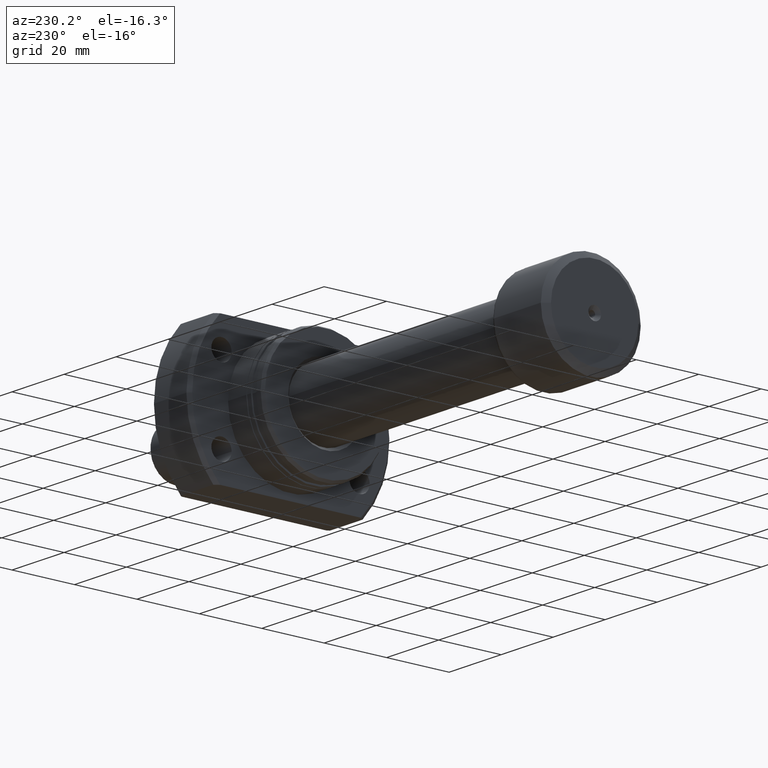
[diagram: clean part render]
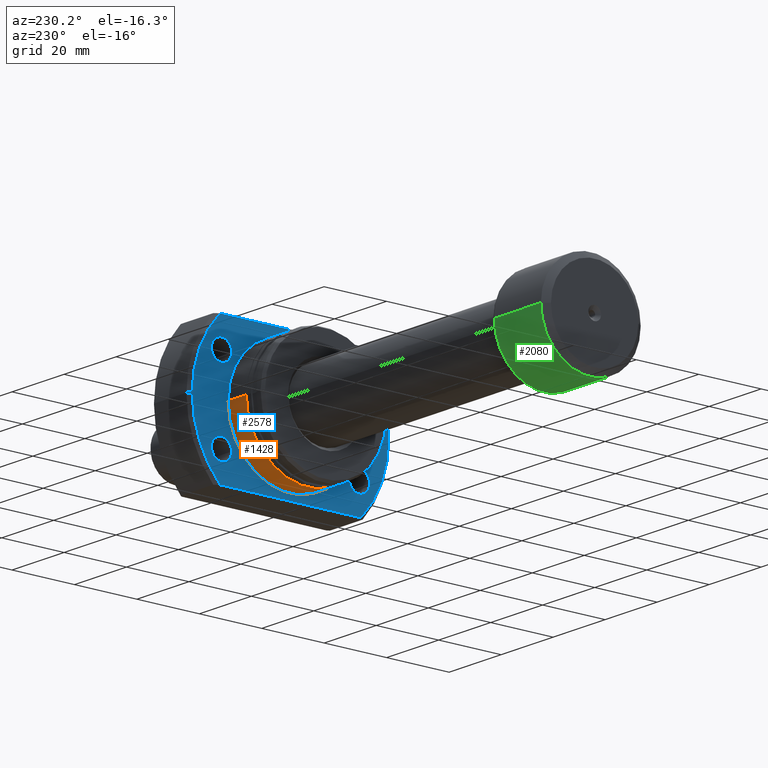
[diagram: same view with three faces highlighted in distinct colors, each labeled with its STEP entity id]
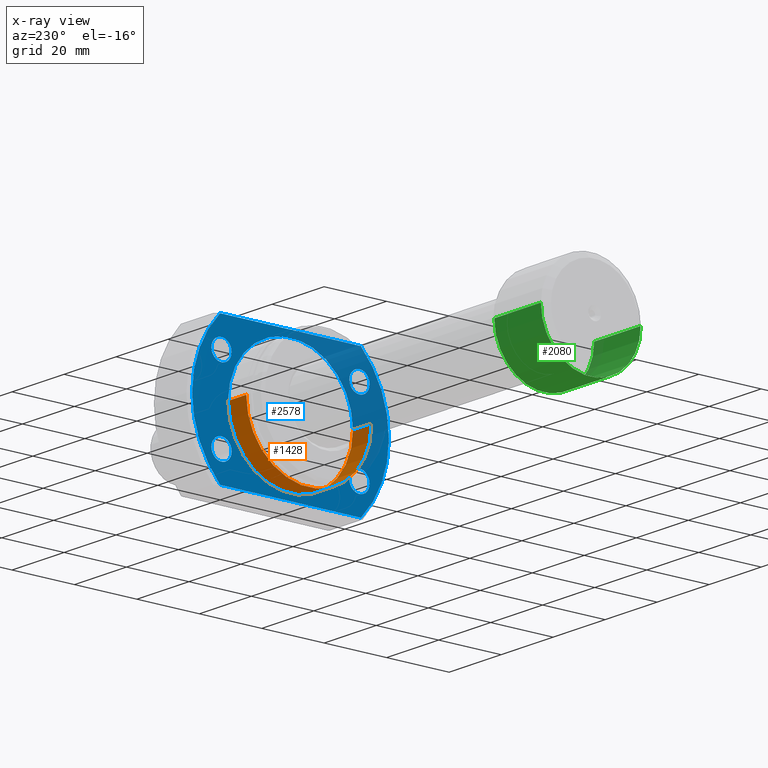
[diagram: x-ray of the same camera — body ghosted, the three highlighted faces saturated]
A machine part, auxiliary view with three faces highlighted in distinct colors.
The next image is the same camera in x-ray (body ghosted, the three faces saturated) — at least one of them is partly hidden behind the body in this view.
Their STEP definitions:

[orange] entity #1428 — the highlighted cylindrical surface (partial cylindrical patch) has radius 20 mm, axis along (1, 0, 0).
#198 = ORIENTED_EDGE ( 'NONE', *, *, #2036, .F. ) ;
#228 = ORIENTED_EDGE ( 'NONE', *, *, #2016, .F. ) ;
#271 = DIRECTION ( 'NONE',  ( 0.000000000000000000, 1.000000000000000000, 0.000000000000000000 ) ) ;
#300 = CARTESIAN_POINT ( 'NONE',  ( 6.499999999999783284, 8.683859121226395531E-17, 0.000000000000000000 ) ) ;
#322 = DIRECTION ( 'NONE',  ( 0.000000000000000000, 1.000000000000000000, 0.000000000000000000 ) ) ;
#397 = VERTEX_POINT ( 'NONE', #1728 ) ;
#549 = EDGE_CURVE ( 'NONE', #1107, #1860, #3311, .T. ) ;
#571 = AXIS2_PLACEMENT_3D ( 'NONE', #2823, #3403, #322 ) ;
#634 = AXIS2_PLACEMENT_3D ( 'NONE', #854, #1681, #271 ) ;
#696 = VECTOR ( 'NONE', #1436, 1000.000000000000000 ) ;
#780 = ORIENTED_EDGE ( 'NONE', *, *, #549, .T. ) ;
#828 = CARTESIAN_POINT ( 'NONE',  ( 13.50000000000000355, 19.99999999999999645, 0.000000000000000000 ) ) ;
#844 = DIRECTION ( 'NONE',  ( 0.000000000000000000, 1.000000000000000000, 0.000000000000000000 ) ) ;
#854 = CARTESIAN_POINT ( 'NONE',  ( 13.50000000000000355, 1.803570740562465471E-16, 0.000000000000000000 ) ) ;
#997 = CARTESIAN_POINT ( 'NONE',  ( 6.499999999999783284, 19.99999999999999645, 0.000000000000000000 ) ) ;
#1107 = VERTEX_POINT ( 'NONE', #2879 ) ;
#1428 = ADVANCED_FACE ( 'NONE', ( #1737 ), #2875, .T. ) ;
#1436 = DIRECTION ( 'NONE',  ( 1.000000000000000000, 1.335978326342566810E-17, -0.000000000000000000 ) ) ;
#1681 = DIRECTION ( 'NONE',  ( 1.000000000000000000, 1.335978326342566810E-17, -0.000000000000000000 ) ) ;
#1688 = DIRECTION ( 'NONE',  ( 1.000000000000000000, 1.335978326342566810E-17, -0.000000000000000000 ) ) ;
#1693 = CARTESIAN_POINT ( 'NONE',  ( 27.50000000000000355, -19.99999999999999645, 2.449293598294706119E-15 ) ) ;
#1728 = CARTESIAN_POINT ( 'NONE',  ( 13.50000000000000355, -19.99999999999999645, 2.449293598294706119E-15 ) ) ;
#1737 = FACE_OUTER_BOUND ( 'NONE', #2242, .T. ) ;
#1860 = VERTEX_POINT ( 'NONE', #997 ) ;
#1988 = CARTESIAN_POINT ( 'NONE',  ( 27.50000000000000355, 19.99999999999999645, 0.000000000000000000 ) ) ;
#2016 = EDGE_CURVE ( 'NONE', #397, #2565, #2653, .T. ) ;
#2036 = EDGE_CURVE ( 'NONE', #1107, #397, #2243, .T. ) ;
#2087 = EDGE_CURVE ( 'NONE', #1860, #2565, #2822, .T. ) ;
#2127 = AXIS2_PLACEMENT_3D ( 'NONE', #300, #1688, #844 ) ;
#2242 = EDGE_LOOP ( 'NONE', ( #198, #780, #2966, #228 ) ) ;
#2243 = LINE ( 'NONE', #1693, #2482 ) ;
#2482 = VECTOR ( 'NONE', #3666, 1000.000000000000000 ) ;
#2565 = VERTEX_POINT ( 'NONE', #828 ) ;
#2653 = CIRCLE ( 'NONE', #634, 19.99999999999999645 ) ;
#2822 = LINE ( 'NONE', #1988, #696 ) ;
#2823 = CARTESIAN_POINT ( 'NONE',  ( 27.50000000000000355, 3.673940397442059375E-16, 0.000000000000000000 ) ) ;
#2875 = CYLINDRICAL_SURFACE ( 'NONE', #571, 19.99999999999999645 ) ;
#2879 = CARTESIAN_POINT ( 'NONE',  ( 6.499999999999783284, -19.99999999999999645, 2.449293598294706119E-15 ) ) ;
#2966 = ORIENTED_EDGE ( 'NONE', *, *, #2087, .T. ) ;
#3311 = CIRCLE ( 'NONE', #2127, 19.99999999999999645 ) ;
#3403 = DIRECTION ( 'NONE',  ( 1.000000000000000000, 1.335978326342566810E-17, -0.000000000000000000 ) ) ;
#3666 = DIRECTION ( 'NONE',  ( 1.000000000000000000, 1.335978326342566810E-17, -0.000000000000000000 ) ) ;

[blue] entity #2578 — the highlighted planar face has unit normal (1, 0, 0).
#1 = DIRECTION ( 'NONE',  ( 1.000000000000000000, 1.335978326342566810E-17, -0.000000000000000000 ) ) ;
#35 = EDGE_LOOP ( 'NONE', ( #880, #1268 ) ) ;
#38 = DIRECTION ( 'NONE',  ( 1.000000000000000000, 1.335978326342566810E-17, -0.000000000000000000 ) ) ;
#55 = CARTESIAN_POINT ( 'NONE',  ( 13.50000000000000178, 22.54440063519089676, 22.00000000000000355 ) ) ;
#60 = DIRECTION ( 'NONE',  ( 1.000000000000000000, 1.335978326342566810E-17, -0.000000000000000000 ) ) ;
#78 = ORIENTED_EDGE ( 'NONE', *, *, #1353, .F. ) ;
#96 = EDGE_LOOP ( 'NONE', ( #2579, #3077 ) ) ;
#113 = VERTEX_POINT ( 'NONE', #1857 ) ;
#187 = ORIENTED_EDGE ( 'NONE', *, *, #2217, .T. ) ;
#195 = VERTEX_POINT ( 'NONE', #3349 ) ;
#201 = ORIENTED_EDGE ( 'NONE', *, *, #712, .T. ) ;
#217 = DIRECTION ( 'NONE',  ( 1.000000000000000000, 1.335978326342566810E-17, -0.000000000000000000 ) ) ;
#271 = DIRECTION ( 'NONE',  ( 0.000000000000000000, 1.000000000000000000, 0.000000000000000000 ) ) ;
#273 = CARTESIAN_POINT ( 'NONE',  ( 13.50000000000000178, -22.10000000000038511, -12.75000000000000178 ) ) ;
#316 = FACE_BOUND ( 'NONE', #3572, .T. ) ;
#319 = EDGE_CURVE ( 'NONE', #2730, #3399, #2531, .T. ) ;
#334 = DIRECTION ( 'NONE',  ( 1.000000000000000000, 1.335978326342566810E-17, -0.000000000000000000 ) ) ;
#346 = CIRCLE ( 'NONE', #1077, 3.249999999999999556 ) ;
#397 = VERTEX_POINT ( 'NONE', #1728 ) ;
#411 = CARTESIAN_POINT ( 'NONE',  ( 13.50000000000000178, 1.803570740562465225E-16, 0.000000000000000000 ) ) ;
#426 = VERTEX_POINT ( 'NONE', #55 ) ;
#450 = CARTESIAN_POINT ( 'NONE',  ( 13.50000000000000178, -22.10000000000038511, 12.74999999999999822 ) ) ;
#456 = CIRCLE ( 'NONE', #621, 19.99999999999999645 ) ;
#535 = CIRCLE ( 'NONE', #2022, 3.249999999999999556 ) ;
#551 = CARTESIAN_POINT ( 'NONE',  ( 13.50000000000000178, 22.09999999999961773, 12.74999999999999822 ) ) ;
#592 = VERTEX_POINT ( 'NONE', #2798 ) ;
#601 = DIRECTION ( 'NONE',  ( 1.335978326342566810E-17, -1.000000000000000000, 0.000000000000000000 ) ) ;
#618 = CARTESIAN_POINT ( 'NONE',  ( 13.50000000000000178, 1.803570740562465225E-16, 0.000000000000000000 ) ) ;
#621 = AXIS2_PLACEMENT_3D ( 'NONE', #818, #217, #2248 ) ;
#624 = CIRCLE ( 'NONE', #2011, 31.49999999999993250 ) ;
#634 = AXIS2_PLACEMENT_3D ( 'NONE', #854, #1681, #271 ) ;
#659 = VERTEX_POINT ( 'NONE', #1508 ) ;
#679 = DIRECTION ( 'NONE',  ( 0.000000000000000000, 1.000000000000000000, 0.000000000000000000 ) ) ;
#682 = AXIS2_PLACEMENT_3D ( 'NONE', #273, #38, #3404 ) ;
#701 = AXIS2_PLACEMENT_3D ( 'NONE', #2083, #1515, #1462 ) ;
#712 = EDGE_CURVE ( 'NONE', #2565, #397, #456, .T. ) ;
#733 = ORIENTED_EDGE ( 'NONE', *, *, #1291, .F. ) ;
#770 = CARTESIAN_POINT ( 'NONE',  ( 13.50000000000000178, -19.99999999999999645, 22.00000000000000355 ) ) ;
#786 = LINE ( 'NONE', #2947, #1890 ) ;
#818 = CARTESIAN_POINT ( 'NONE',  ( 13.50000000000000355, 1.803570740562465471E-16, 0.000000000000000000 ) ) ;
#828 = CARTESIAN_POINT ( 'NONE',  ( 13.50000000000000355, 19.99999999999999645, 0.000000000000000000 ) ) ;
#833 = ORIENTED_EDGE ( 'NONE', *, *, #2807, .F. ) ;
#854 = CARTESIAN_POINT ( 'NONE',  ( 13.50000000000000355, 1.803570740562465471E-16, 0.000000000000000000 ) ) ;
#872 = DIRECTION ( 'NONE',  ( 0.000000000000000000, 1.000000000000000000, 0.000000000000000000 ) ) ;
#880 = ORIENTED_EDGE ( 'NONE', *, *, #1557, .T. ) ;
#881 = FACE_OUTER_BOUND ( 'NONE', #3254, .T. ) ;
#955 = FACE_BOUND ( 'NONE', #96, .T. ) ;
#973 = DIRECTION ( 'NONE',  ( 1.000000000000000000, 1.335978326342566810E-17, -0.000000000000000000 ) ) ;
#985 = DIRECTION ( 'NONE',  ( 1.000000000000000000, 1.335978326342566810E-17, -0.000000000000000000 ) ) ;
#1005 = VERTEX_POINT ( 'NONE', #2765 ) ;
#1077 = AXIS2_PLACEMENT_3D ( 'NONE', #3523, #973, #2471 ) ;
#1132 = CIRCLE ( 'NONE', #1596, 31.49999999999993250 ) ;
#1219 = FACE_BOUND ( 'NONE', #1813, .T. ) ;
#1268 = ORIENTED_EDGE ( 'NONE', *, *, #3670, .T. ) ;
#1283 = CARTESIAN_POINT ( 'NONE',  ( 13.50000000000000178, 31.49999999999993250, 0.000000000000000000 ) ) ;
#1291 = EDGE_CURVE ( 'NONE', #592, #1391, #624, .T. ) ;
#1313 = CARTESIAN_POINT ( 'NONE',  ( 13.50000000000000178, -22.10000000000038511, -12.75000000000000178 ) ) ;
#1353 = EDGE_CURVE ( 'NONE', #426, #1834, #2188, .T. ) ;
#1368 = DIRECTION ( 'NONE',  ( 1.000000000000000000, 1.335978326342566810E-17, -0.000000000000000000 ) ) ;
#1391 = VERTEX_POINT ( 'NONE', #1283 ) ;
#1412 = CARTESIAN_POINT ( 'NONE',  ( 13.50000000000000178, -22.10000000000038511, 12.74999999999999822 ) ) ;
#1442 = ORIENTED_EDGE ( 'NONE', *, *, #2016, .T. ) ;
#1458 = FACE_BOUND ( 'NONE', #1798, .T. ) ;
#1462 = DIRECTION ( 'NONE',  ( 0.000000000000000000, 1.000000000000000000, 0.000000000000000000 ) ) ;
#1472 = AXIS2_PLACEMENT_3D ( 'NONE', #450, #3551, #679 ) ;
#1507 = EDGE_CURVE ( 'NONE', #3094, #2410, #2539, .T. ) ;
#1508 = CARTESIAN_POINT ( 'NONE',  ( 13.50000000000000178, -18.85000000000038867, 12.74999999999999822 ) ) ;
#1515 = DIRECTION ( 'NONE',  ( 1.000000000000000000, 1.335978326342566810E-17, -0.000000000000000000 ) ) ;
#1557 = EDGE_CURVE ( 'NONE', #195, #113, #3491, .T. ) ;
#1593 = VECTOR ( 'NONE', #3651, 1000.000000000000000 ) ;
#1596 = AXIS2_PLACEMENT_3D ( 'NONE', #411, #985, #3520 ) ;
#1600 = CIRCLE ( 'NONE', #3622, 3.249999999999999556 ) ;
#1654 = EDGE_CURVE ( 'NONE', #592, #2742, #786, .T. ) ;
#1681 = DIRECTION ( 'NONE',  ( 1.000000000000000000, 1.335978326342566810E-17, -0.000000000000000000 ) ) ;
#1685 = CARTESIAN_POINT ( 'NONE',  ( 13.50000000000000178, 1.803570740562465225E-16, 0.000000000000000000 ) ) ;
#1713 = EDGE_CURVE ( 'NONE', #1834, #2742, #1963, .T. ) ;
#1728 = CARTESIAN_POINT ( 'NONE',  ( 13.50000000000000355, -19.99999999999999645, 2.449293598294706119E-15 ) ) ;
#1741 = DIRECTION ( 'NONE',  ( 0.000000000000000000, 1.000000000000000000, 0.000000000000000000 ) ) ;
#1783 = ORIENTED_EDGE ( 'NONE', *, *, #1713, .F. ) ;
#1798 = EDGE_LOOP ( 'NONE', ( #2743, #187 ) ) ;
#1813 = EDGE_LOOP ( 'NONE', ( #2232, #2941 ) ) ;
#1829 = AXIS2_PLACEMENT_3D ( 'NONE', #2009, #60, #1741 ) ;
#1834 = VERTEX_POINT ( 'NONE', #2440 ) ;
#1857 = CARTESIAN_POINT ( 'NONE',  ( 13.50000000000000178, 18.84999999999961773, 12.74999999999999822 ) ) ;
#1890 = VECTOR ( 'NONE', #601, 1000.000000000000000 ) ;
#1963 = CIRCLE ( 'NONE', #3096, 31.49999999999993250 ) ;
#2009 = CARTESIAN_POINT ( 'NONE',  ( 13.50000000000000178, 22.09999999999961773, -12.75000000000000178 ) ) ;
#2011 = AXIS2_PLACEMENT_3D ( 'NONE', #1685, #1368, #2489 ) ;
#2016 = EDGE_CURVE ( 'NONE', #397, #2565, #2653, .T. ) ;
#2022 = AXIS2_PLACEMENT_3D ( 'NONE', #1412, #1, #2470 ) ;
#2083 = CARTESIAN_POINT ( 'NONE',  ( 13.50000000000000178, 22.09999999999961773, -12.75000000000000178 ) ) ;
#2188 = LINE ( 'NONE', #770, #1593 ) ;
#2208 = FACE_BOUND ( 'NONE', #35, .T. ) ;
#2217 = EDGE_CURVE ( 'NONE', #2410, #3094, #2547, .T. ) ;
#2232 = ORIENTED_EDGE ( 'NONE', *, *, #3307, .T. ) ;
#2248 = DIRECTION ( 'NONE',  ( 0.000000000000000000, 1.000000000000000000, 0.000000000000000000 ) ) ;
#2270 = DIRECTION ( 'NONE',  ( 1.000000000000000000, 1.335978326342566810E-17, -0.000000000000000000 ) ) ;
#2274 = CARTESIAN_POINT ( 'NONE',  ( 13.50000000000000178, 25.34999999999961418, -12.75000000000000178 ) ) ;
#2337 = CARTESIAN_POINT ( 'NONE',  ( 13.50000000000000178, -19.99999999999999645, 0.000000000000000000 ) ) ;
#2410 = VERTEX_POINT ( 'NONE', #3603 ) ;
#2440 = CARTESIAN_POINT ( 'NONE',  ( 13.50000000000001421, -22.54440063519093940, 22.00000000000000355 ) ) ;
#2455 = EDGE_CURVE ( 'NONE', #659, #1005, #535, .T. ) ;
#2470 = DIRECTION ( 'NONE',  ( 0.000000000000000000, 1.000000000000000000, 0.000000000000000000 ) ) ;
#2471 = DIRECTION ( 'NONE',  ( 0.000000000000000000, 1.000000000000000000, 0.000000000000000000 ) ) ;
#2489 = DIRECTION ( 'NONE',  ( 0.000000000000000000, 1.000000000000000000, 0.000000000000000000 ) ) ;
#2531 = CIRCLE ( 'NONE', #682, 3.249999999999999556 ) ;
#2539 = CIRCLE ( 'NONE', #1829, 3.249999999999999556 ) ;
#2547 = CIRCLE ( 'NONE', #701, 3.249999999999999556 ) ;
#2565 = VERTEX_POINT ( 'NONE', #828 ) ;
#2578 = ADVANCED_FACE ( 'NONE', ( #2208, #955, #1219, #1458, #316, #881 ), #3184, .F. ) ;
#2579 = ORIENTED_EDGE ( 'NONE', *, *, #2455, .T. ) ;
#2653 = CIRCLE ( 'NONE', #634, 19.99999999999999645 ) ;
#2730 = VERTEX_POINT ( 'NONE', #3264 ) ;
#2742 = VERTEX_POINT ( 'NONE', #3298 ) ;
#2743 = ORIENTED_EDGE ( 'NONE', *, *, #1507, .T. ) ;
#2765 = CARTESIAN_POINT ( 'NONE',  ( 13.50000000000000178, -25.35000000000038511, 12.74999999999999822 ) ) ;
#2790 = EDGE_CURVE ( 'NONE', #1005, #659, #3200, .T. ) ;
#2798 = CARTESIAN_POINT ( 'NONE',  ( 13.50000000000000178, 22.54440063519089676, -22.00000000000000355 ) ) ;
#2807 = EDGE_CURVE ( 'NONE', #1391, #426, #1132, .T. ) ;
#2900 = AXIS2_PLACEMENT_3D ( 'NONE', #2337, #334, #3169 ) ;
#2941 = ORIENTED_EDGE ( 'NONE', *, *, #319, .T. ) ;
#2947 = CARTESIAN_POINT ( 'NONE',  ( 13.50000000000000178, -19.99999999999999645, -22.00000000000000355 ) ) ;
#3077 = ORIENTED_EDGE ( 'NONE', *, *, #2790, .T. ) ;
#3094 = VERTEX_POINT ( 'NONE', #2274 ) ;
#3096 = AXIS2_PLACEMENT_3D ( 'NONE', #618, #3454, #3221 ) ;
#3143 = AXIS2_PLACEMENT_3D ( 'NONE', #551, #2270, #872 ) ;
#3169 = DIRECTION ( 'NONE',  ( -1.335978326342566810E-17, 1.000000000000000000, 0.000000000000000000 ) ) ;
#3184 = PLANE ( 'NONE',  #2900 ) ;
#3196 = ORIENTED_EDGE ( 'NONE', *, *, #1654, .T. ) ;
#3200 = CIRCLE ( 'NONE', #1472, 3.249999999999999556 ) ;
#3221 = DIRECTION ( 'NONE',  ( 0.000000000000000000, 1.000000000000000000, 0.000000000000000000 ) ) ;
#3226 = DIRECTION ( 'NONE',  ( 0.000000000000000000, 1.000000000000000000, 0.000000000000000000 ) ) ;
#3254 = EDGE_LOOP ( 'NONE', ( #78, #833, #733, #3196, #1783 ) ) ;
#3264 = CARTESIAN_POINT ( 'NONE',  ( 13.50000000000000178, -25.35000000000038511, -12.75000000000000178 ) ) ;
#3279 = DIRECTION ( 'NONE',  ( 1.000000000000000000, 1.335978326342566810E-17, -0.000000000000000000 ) ) ;
#3298 = CARTESIAN_POINT ( 'NONE',  ( 13.50000000000001421, -22.54440063519093940, -22.00000000000000355 ) ) ;
#3307 = EDGE_CURVE ( 'NONE', #3399, #2730, #1600, .T. ) ;
#3349 = CARTESIAN_POINT ( 'NONE',  ( 13.50000000000000178, 25.34999999999961418, 12.74999999999999822 ) ) ;
#3399 = VERTEX_POINT ( 'NONE', #3595 ) ;
#3404 = DIRECTION ( 'NONE',  ( 0.000000000000000000, 1.000000000000000000, 0.000000000000000000 ) ) ;
#3454 = DIRECTION ( 'NONE',  ( 1.000000000000000000, 1.335978326342566810E-17, -0.000000000000000000 ) ) ;
#3491 = CIRCLE ( 'NONE', #3143, 3.249999999999999556 ) ;
#3520 = DIRECTION ( 'NONE',  ( 0.000000000000000000, 1.000000000000000000, 0.000000000000000000 ) ) ;
#3523 = CARTESIAN_POINT ( 'NONE',  ( 13.50000000000000178, 22.09999999999961773, 12.74999999999999822 ) ) ;
#3551 = DIRECTION ( 'NONE',  ( 1.000000000000000000, 1.335978326342566810E-17, -0.000000000000000000 ) ) ;
#3572 = EDGE_LOOP ( 'NONE', ( #201, #1442 ) ) ;
#3595 = CARTESIAN_POINT ( 'NONE',  ( 13.50000000000000178, -18.85000000000038867, -12.75000000000000178 ) ) ;
#3603 = CARTESIAN_POINT ( 'NONE',  ( 13.50000000000000178, 18.84999999999961773, -12.75000000000000178 ) ) ;
#3622 = AXIS2_PLACEMENT_3D ( 'NONE', #1313, #3279, #3226 ) ;
#3651 = DIRECTION ( 'NONE',  ( 1.335978326342566810E-17, -1.000000000000000000, 0.000000000000000000 ) ) ;
#3670 = EDGE_CURVE ( 'NONE', #113, #195, #346, .T. ) ;

[green] entity #2080 — the highlighted cylindrical surface (partial cylindrical patch) has radius 16 mm, axis along (-1, -0, -0).
#151 = CARTESIAN_POINT ( 'NONE',  ( 1.500000000000001998, 1.604313483103600935E-17, 0.000000000000000000 ) ) ;
#172 = ORIENTED_EDGE ( 'NONE', *, *, #244, .F. ) ;
#232 = AXIS2_PLACEMENT_3D ( 'NONE', #1384, #547, #2267 ) ;
#234 = VERTEX_POINT ( 'NONE', #1024 ) ;
#244 = EDGE_CURVE ( 'NONE', #234, #1336, #3329, .T. ) ;
#269 = CARTESIAN_POINT ( 'NONE',  ( 1.711267715310505281E-16, -16.00000000000000000, 0.000000000000000000 ) ) ;
#282 = VECTOR ( 'NONE', #3677, 1000.000000000000000 ) ;
#307 = CARTESIAN_POINT ( 'NONE',  ( 19.39999999999999503, -16.00000000000000000, 0.000000000000000000 ) ) ;
#424 = DIRECTION ( 'NONE',  ( 0.000000000000000000, -1.000000000000000000, 0.000000000000000000 ) ) ;
#547 = DIRECTION ( 'NONE',  ( -1.000000000000000000, -1.069542322069065801E-17, -0.000000000000000000 ) ) ;
#565 = VERTEX_POINT ( 'NONE', #2511 ) ;
#849 = LINE ( 'NONE', #269, #282 ) ;
#946 = VECTOR ( 'NONE', #2454, 1000.000000000000000 ) ;
#1024 = CARTESIAN_POINT ( 'NONE',  ( 1.500000000000001776, 16.00000000000000000, 0.000000000000000000 ) ) ;
#1045 = CARTESIAN_POINT ( 'NONE',  ( 1.500000000000002220, -16.00000000000000000, 1.959434878635765526E-15 ) ) ;
#1309 = DIRECTION ( 'NONE',  ( -1.000000000000000000, -1.069542322069065801E-17, -0.000000000000000000 ) ) ;
#1336 = VERTEX_POINT ( 'NONE', #1045 ) ;
#1339 = CARTESIAN_POINT ( 'NONE',  ( -1.711267715310505281E-16, 16.00000000000000000, 1.959434878635765131E-15 ) ) ;
#1360 = EDGE_CURVE ( 'NONE', #2121, #1336, #849, .T. ) ;
#1384 = CARTESIAN_POINT ( 'NONE',  ( 0.000000000000000000, 0.000000000000000000, 0.000000000000000000 ) ) ;
#1691 = ORIENTED_EDGE ( 'NONE', *, *, #1360, .T. ) ;
#1839 = DIRECTION ( 'NONE',  ( -1.000000000000000000, -1.069542322069065801E-17, -0.000000000000000000 ) ) ;
#1935 = ORIENTED_EDGE ( 'NONE', *, *, #3283, .T. ) ;
#2080 = ADVANCED_FACE ( 'NONE', ( #2791 ), #3631, .T. ) ;
#2121 = VERTEX_POINT ( 'NONE', #307 ) ;
#2203 = AXIS2_PLACEMENT_3D ( 'NONE', #151, #1309, #3310 ) ;
#2230 = EDGE_LOOP ( 'NONE', ( #2347, #1935, #1691, #172 ) ) ;
#2267 = DIRECTION ( 'NONE',  ( 1.069542322069065801E-17, -1.000000000000000000, 0.000000000000000000 ) ) ;
#2347 = ORIENTED_EDGE ( 'NONE', *, *, #2401, .F. ) ;
#2401 = EDGE_CURVE ( 'NONE', #565, #234, #2740, .T. ) ;
#2454 = DIRECTION ( 'NONE',  ( -1.000000000000000000, -1.069542322069065801E-17, -0.000000000000000000 ) ) ;
#2481 = AXIS2_PLACEMENT_3D ( 'NONE', #3242, #1839, #424 ) ;
#2511 = CARTESIAN_POINT ( 'NONE',  ( 19.39999999999999503, 16.00000000000000000, 1.959434878635765131E-15 ) ) ;
#2715 = CIRCLE ( 'NONE', #2481, 16.00000000000000000 ) ;
#2740 = LINE ( 'NONE', #1339, #946 ) ;
#2791 = FACE_OUTER_BOUND ( 'NONE', #2230, .T. ) ;
#3242 = CARTESIAN_POINT ( 'NONE',  ( 19.39999999999999503, 2.074912104813986935E-16, 0.000000000000000000 ) ) ;
#3283 = EDGE_CURVE ( 'NONE', #565, #2121, #2715, .T. ) ;
#3310 = DIRECTION ( 'NONE',  ( 1.355252715606880543E-17, -1.000000000000000000, 0.000000000000000000 ) ) ;
#3329 = CIRCLE ( 'NONE', #2203, 16.00000000000000000 ) ;
#3631 = CYLINDRICAL_SURFACE ( 'NONE', #232, 16.00000000000000000 ) ;
#3677 = DIRECTION ( 'NONE',  ( -1.000000000000000000, -1.069542322069065801E-17, -0.000000000000000000 ) ) ;